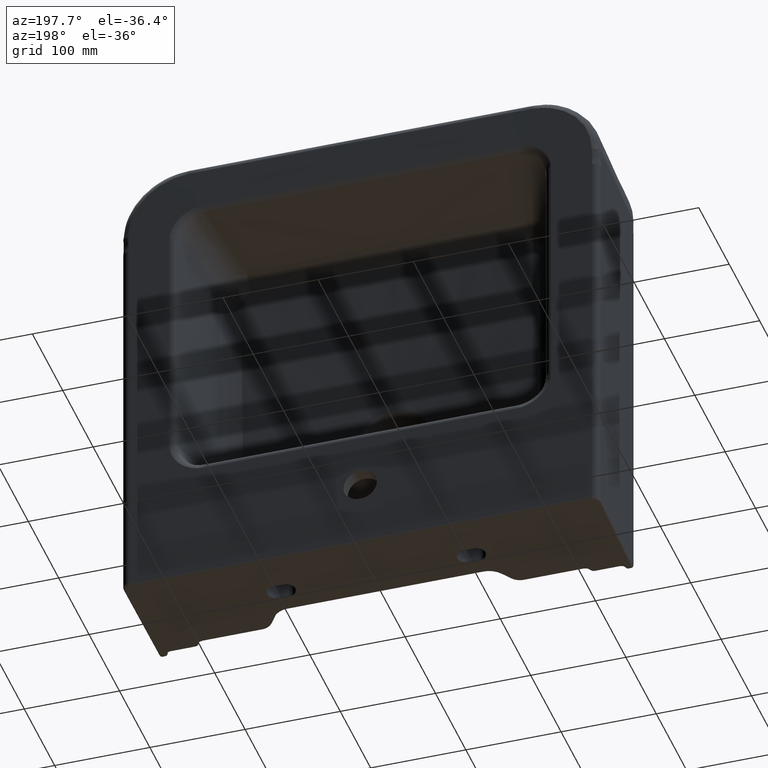
[diagram: clean part render]
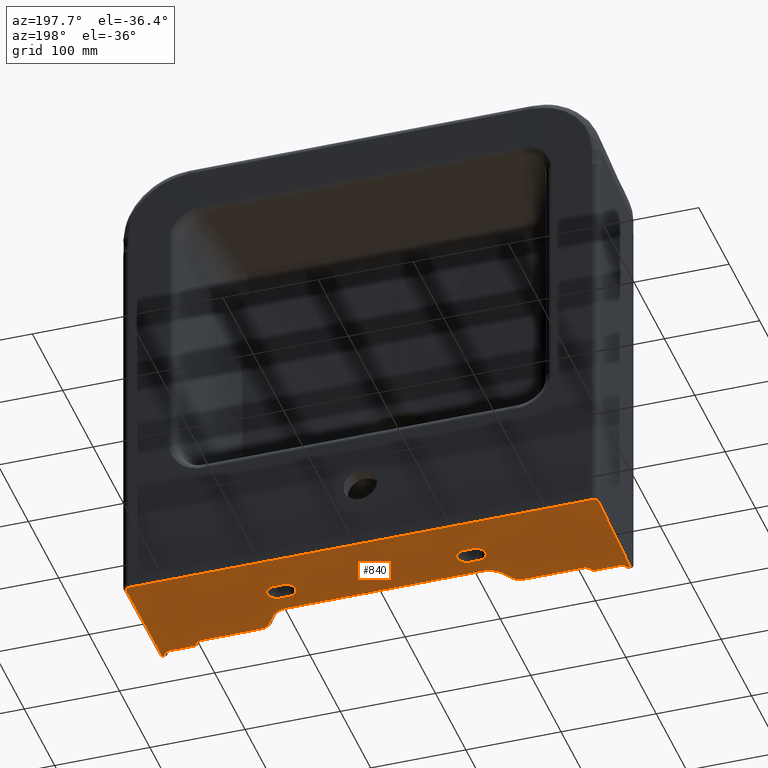
[diagram: same view with one face highlighted and labeled with its STEP entity id]
A machine part, auxiliary view. The second image highlights one B-rep face of the part: STEP entity #840.
In plain terms, the highlighted planar face has unit normal (0, -0.0279, 0.9996).
Its self-contained STEP definition (entity closure, byte-faithful):
#206=FACE_BOUND('',#1433,.T.);
#207=FACE_BOUND('',#1434,.T.);
#208=FACE_BOUND('',#1435,.T.);
#404=PLANE('',#4704);
#448=ELLIPSE('',#4688,4.70183338348822,4.7);
#449=ELLIPSE('',#4689,6.58256673688351,6.58);
#450=ELLIPSE('',#4690,1.88073335339529,1.88);
#451=ELLIPSE('',#4691,7.52293341358115,7.52);
#452=ELLIPSE('',#4692,11.2877804715137,11.28);
#453=ELLIPSE('',#4693,21.6205266363015,21.62);
#454=ELLIPSE('',#4694,21.6205266363016,21.62);
#455=ELLIPSE('',#4695,11.287780471497,11.28);
#456=ELLIPSE('',#4696,7.52293341358115,7.52);
#457=ELLIPSE('',#4697,1.88073335339529,1.88);
#458=ELLIPSE('',#4698,6.58256673688351,6.58);
#459=ELLIPSE('',#4699,4.70183338348822,4.7);
#460=ELLIPSE('',#4700,9.98709640243345,9.98320213903743);
#461=ELLIPSE('',#4701,9.98709640243345,9.98320213903743);
#462=ELLIPSE('',#4702,9.98709640243345,9.98320213903743);
#463=ELLIPSE('',#4703,9.98709640243345,9.98320213903743);
#542=LINE('',#6338,#695);
#543=LINE('',#6343,#696);
#544=LINE('',#6345,#697);
#545=LINE('',#6347,#698);
#546=LINE('',#6351,#699);
#547=LINE('',#6357,#700);
#548=LINE('',#6361,#701);
#549=LINE('',#6365,#702);
#550=LINE('',#6369,#703);
#551=LINE('',#6373,#704);
#552=LINE('',#6379,#705);
#553=LINE('',#6383,#706);
#554=LINE('',#6385,#707);
#555=LINE('',#6387,#708);
#556=LINE('',#6390,#709);
#557=LINE('',#6395,#710);
#558=LINE('',#6398,#711);
#559=LINE('',#6403,#712);
#695=VECTOR('',#5119,1.);
#696=VECTOR('',#5122,1.);
#697=VECTOR('',#5123,1.);
#698=VECTOR('',#5124,1.);
#699=VECTOR('',#5127,1.);
#700=VECTOR('',#5132,1.);
#701=VECTOR('',#5135,1.);
#702=VECTOR('',#5138,1.);
#703=VECTOR('',#5141,1.);
#704=VECTOR('',#5144,1.);
#705=VECTOR('',#5149,1.);
#706=VECTOR('',#5152,1.);
#707=VECTOR('',#5153,1.);
#708=VECTOR('',#5154,1.);
#709=VECTOR('',#5157,1.);
#710=VECTOR('',#5160,1.);
#711=VECTOR('',#5163,1.);
#712=VECTOR('',#5166,1.);
#840=ADVANCED_FACE('',(#206,#207,#208),#404,.F.);
#1433=EDGE_LOOP('',(#1981,#1982,#1983,#1984,#1985,#1986,#1987,#1988,#1989,
#1990,#1991,#1992,#1993,#1994,#1995,#1996,#1997,#1998,#1999,#2000,#2001,
#2002,#2003,#2004,#2005,#2006));
#1434=EDGE_LOOP('',(#2007,#2008,#2009,#2010));
#1435=EDGE_LOOP('',(#2011,#2012,#2013,#2014));
#1981=ORIENTED_EDGE('',*,*,#3771,.T.);
#1982=ORIENTED_EDGE('',*,*,#3772,.T.);
#1983=ORIENTED_EDGE('',*,*,#3773,.T.);
#1984=ORIENTED_EDGE('',*,*,#3774,.T.);
#1985=ORIENTED_EDGE('',*,*,#3775,.T.);
#1986=ORIENTED_EDGE('',*,*,#3776,.T.);
#1987=ORIENTED_EDGE('',*,*,#3777,.T.);
#1988=ORIENTED_EDGE('',*,*,#3778,.T.);
#1989=ORIENTED_EDGE('',*,*,#3779,.T.);
#1990=ORIENTED_EDGE('',*,*,#3780,.T.);
#1991=ORIENTED_EDGE('',*,*,#3781,.T.);
#1992=ORIENTED_EDGE('',*,*,#3782,.T.);
#1993=ORIENTED_EDGE('',*,*,#3783,.T.);
#1994=ORIENTED_EDGE('',*,*,#3784,.T.);
#1995=ORIENTED_EDGE('',*,*,#3785,.T.);
#1996=ORIENTED_EDGE('',*,*,#3786,.T.);
#1997=ORIENTED_EDGE('',*,*,#3787,.T.);
#1998=ORIENTED_EDGE('',*,*,#3788,.T.);
#1999=ORIENTED_EDGE('',*,*,#3789,.T.);
#2000=ORIENTED_EDGE('',*,*,#3790,.T.);
#2001=ORIENTED_EDGE('',*,*,#3791,.T.);
#2002=ORIENTED_EDGE('',*,*,#3792,.T.);
#2003=ORIENTED_EDGE('',*,*,#3793,.T.);
#2004=ORIENTED_EDGE('',*,*,#3794,.T.);
#2005=ORIENTED_EDGE('',*,*,#3795,.T.);
#2006=ORIENTED_EDGE('',*,*,#3796,.T.);
#2007=ORIENTED_EDGE('',*,*,#3797,.T.);
#2008=ORIENTED_EDGE('',*,*,#3798,.T.);
#2009=ORIENTED_EDGE('',*,*,#3799,.T.);
#2010=ORIENTED_EDGE('',*,*,#3800,.T.);
#2011=ORIENTED_EDGE('',*,*,#3801,.F.);
#2012=ORIENTED_EDGE('',*,*,#3802,.F.);
#2013=ORIENTED_EDGE('',*,*,#3803,.F.);
#2014=ORIENTED_EDGE('',*,*,#3804,.F.);
#3365=VERTEX_POINT('',#6339);
#3366=VERTEX_POINT('',#6340);
#3367=VERTEX_POINT('',#6342);
#3368=VERTEX_POINT('',#6344);
#3369=VERTEX_POINT('',#6346);
#3370=VERTEX_POINT('',#6348);
#3371=VERTEX_POINT('',#6350);
#3372=VERTEX_POINT('',#6352);
#3373=VERTEX_POINT('',#6354);
#3374=VERTEX_POINT('',#6356);
#3375=VERTEX_POINT('',#6358);
#3376=VERTEX_POINT('',#6360);
#3377=VERTEX_POINT('',#6362);
#3378=VERTEX_POINT('',#6364);
#3379=VERTEX_POINT('',#6366);
#3380=VERTEX_POINT('',#6368);
#3381=VERTEX_POINT('',#6370);
#3382=VERTEX_POINT('',#6372);
#3383=VERTEX_POINT('',#6374);
#3384=VERTEX_POINT('',#6376);
#3385=VERTEX_POINT('',#6378);
#3386=VERTEX_POINT('',#6380);
#3387=VERTEX_POINT('',#6382);
#3388=VERTEX_POINT('',#6384);
#3389=VERTEX_POINT('',#6386);
#3390=VERTEX_POINT('',#6388);
#3391=VERTEX_POINT('',#6391);
#3392=VERTEX_POINT('',#6392);
#3393=VERTEX_POINT('',#6394);
#3394=VERTEX_POINT('',#6396);
#3395=VERTEX_POINT('',#6399);
#3396=VERTEX_POINT('',#6400);
#3397=VERTEX_POINT('',#6402);
#3398=VERTEX_POINT('',#6404);
#3771=EDGE_CURVE('',#3365,#3366,#542,.T.);
#3772=EDGE_CURVE('',#3366,#3367,#448,.T.);
#3773=EDGE_CURVE('',#3367,#3368,#543,.T.);
#3774=EDGE_CURVE('',#3368,#3369,#544,.T.);
#3775=EDGE_CURVE('',#3369,#3370,#545,.T.);
#3776=EDGE_CURVE('',#3370,#3371,#449,.T.);
#3777=EDGE_CURVE('',#3371,#3372,#546,.T.);
#3778=EDGE_CURVE('',#3372,#3373,#450,.T.);
#3779=EDGE_CURVE('',#3373,#3374,#451,.T.);
#3780=EDGE_CURVE('',#3374,#3375,#547,.T.);
#3781=EDGE_CURVE('',#3375,#3376,#452,.T.);
#3782=EDGE_CURVE('',#3376,#3377,#548,.T.);
#3783=EDGE_CURVE('',#3377,#3378,#453,.T.);
#3784=EDGE_CURVE('',#3378,#3379,#549,.T.);
#3785=EDGE_CURVE('',#3379,#3380,#454,.T.);
#3786=EDGE_CURVE('',#3380,#3381,#550,.T.);
#3787=EDGE_CURVE('',#3381,#3382,#455,.T.);
#3788=EDGE_CURVE('',#3382,#3383,#551,.T.);
#3789=EDGE_CURVE('',#3383,#3384,#456,.T.);
#3790=EDGE_CURVE('',#3384,#3385,#457,.T.);
#3791=EDGE_CURVE('',#3385,#3386,#552,.T.);
#3792=EDGE_CURVE('',#3386,#3387,#458,.T.);
#3793=EDGE_CURVE('',#3387,#3388,#553,.T.);
#3794=EDGE_CURVE('',#3388,#3389,#554,.T.);
#3795=EDGE_CURVE('',#3389,#3390,#555,.T.);
#3796=EDGE_CURVE('',#3390,#3365,#459,.T.);
#3797=EDGE_CURVE('',#3391,#3392,#556,.T.);
#3798=EDGE_CURVE('',#3392,#3393,#460,.T.);
#3799=EDGE_CURVE('',#3393,#3394,#557,.T.);
#3800=EDGE_CURVE('',#3394,#3391,#461,.T.);
#3801=EDGE_CURVE('',#3395,#3396,#558,.T.);
#3802=EDGE_CURVE('',#3397,#3395,#462,.T.);
#3803=EDGE_CURVE('',#3398,#3397,#559,.T.);
#3804=EDGE_CURVE('',#3396,#3398,#463,.T.);
#4688=AXIS2_PLACEMENT_3D('',#6341,#5120,#5121);
#4689=AXIS2_PLACEMENT_3D('',#6349,#5125,#5126);
#4690=AXIS2_PLACEMENT_3D('',#6353,#5128,#5129);
#4691=AXIS2_PLACEMENT_3D('',#6355,#5130,#5131);
#4692=AXIS2_PLACEMENT_3D('',#6359,#5133,#5134);
#4693=AXIS2_PLACEMENT_3D('',#6363,#5136,#5137);
#4694=AXIS2_PLACEMENT_3D('',#6367,#5139,#5140);
#4695=AXIS2_PLACEMENT_3D('',#6371,#5142,#5143);
#4696=AXIS2_PLACEMENT_3D('',#6375,#5145,#5146);
#4697=AXIS2_PLACEMENT_3D('',#6377,#5147,#5148);
#4698=AXIS2_PLACEMENT_3D('',#6381,#5150,#5151);
#4699=AXIS2_PLACEMENT_3D('',#6389,#5155,#5156);
#4700=AXIS2_PLACEMENT_3D('',#6393,#5158,#5159);
#4701=AXIS2_PLACEMENT_3D('',#6397,#5161,#5162);
#4702=AXIS2_PLACEMENT_3D('',#6401,#5164,#5165);
#4703=AXIS2_PLACEMENT_3D('',#6405,#5167,#5168);
#4704=AXIS2_PLACEMENT_3D('',#6406,#5169,#5170);
#5119=DIRECTION('',(1.,3.02396454661982E-011,0.));
#5120=DIRECTION('',(-3.02278541366964E-011,0.999610070511078,0.0279232328507708));
#5121=DIRECTION('',(1.08226315302036E-009,0.0279232328507708,-0.999610070511078));
#5122=DIRECTION('',(-0.0174456029121474,0.0279189833220354,-0.999457943742155));
#5123=DIRECTION('',(-1.,-3.02396472048581E-011,6.22414316770778E-017));
#5124=DIRECTION('',(-0.12866408989347,-0.0276911414563727,0.991301544766641));
#5125=DIRECTION('',(3.02278541366964E-011,-0.999610070511078,-0.0279232328507708));
#5126=DIRECTION('',(1.08226099868272E-009,0.0279232328507708,-0.999610070511078));
#5127=DIRECTION('',(-0.999999675434204,-2.24974149593069E-005,0.000805372803576523));
#5128=DIRECTION('',(-3.02278541366964E-011,0.999610070511078,0.0279232328507708));
#5129=DIRECTION('',(-1.08250482200015E-009,-0.0279232328507708,0.999610070511078));
#5130=DIRECTION('',(3.02278541366964E-011,-0.999610070511078,-0.0279232328507708));
#5131=DIRECTION('',(-1.08250482200015E-009,-0.0279232328507708,0.999610070511078));
#5132=DIRECTION('',(-0.99999967518791,-2.250594933922E-005,0.000805678321642872));
#5133=DIRECTION('',(-3.02278532066103E-011,0.999610070511078,0.0279232328507708));
#5134=DIRECTION('',(0.658598669734765,0.0210120758169547,-0.752200960444388));
#5135=DIRECTION('',(-0.57365443312597,-0.0228718481381884,0.818778034584261));
#5136=DIRECTION('',(3.02278541366964E-011,-0.999610070511078,-0.0279232328507708));
#5137=DIRECTION('',(-4.33074018297495E-009,0.0279232328507708,-0.999610070511078));
#5138=DIRECTION('',(-1.,-3.02101695940575E-011,-1.05519224032368E-012));
#5139=DIRECTION('',(3.02278541366964E-011,-0.999610070511078,-0.0279232328507708));
#5140=DIRECTION('',(-4.33074007318715E-009,0.0279232328507708,-0.999610070511078));
#5141=DIRECTION('',(-0.573654433125857,0.0228718481035235,-0.818778034585309));
#5142=DIRECTION('',(-3.02278532066103E-011,0.999610070511078,0.0279232328507708));
#5143=DIRECTION('',(-0.658598668813244,0.0210120757996752,-0.752200961251721));
#5144=DIRECTION('',(-0.999999675187911,2.25058888599488E-005,-0.000805678321642873));
#5145=DIRECTION('',(3.02278541366964E-011,-0.999610070511078,-0.0279232328507708));
#5146=DIRECTION('',(-1.08171932543037E-009,-0.0279232328507708,0.999610070511078));
#5147=DIRECTION('',(-3.02278541366964E-011,0.999610070511078,0.0279232328507708));
#5148=DIRECTION('',(-1.08171932543037E-009,-0.0279232328507708,0.999610070511078));
#5149=DIRECTION('',(-0.999999675434206,2.24973544800356E-005,-0.000805372803576525));
#5150=DIRECTION('',(3.02278541366964E-011,-0.999610070511078,-0.0279232328507708));
#5151=DIRECTION('',(1.08196311768217E-009,0.0279232328507708,-0.999610070511078));
#5152=DIRECTION('',(-0.128664089893497,0.0276911414485972,-0.991301544766855));
#5153=DIRECTION('',(-1.,-3.02396437275382E-011,-6.22414316734427E-017));
#5154=DIRECTION('',(-0.0174456029121468,-0.0279189833230897,0.999457943742125));
#5155=DIRECTION('',(-3.02278541366964E-011,0.999610070511078,0.0279232328507708));
#5156=DIRECTION('',(1.08196099441015E-009,0.0279232328507708,-0.999610070511078));
#5157=DIRECTION('',(-1.,-3.02396454661982E-011,4.03896783473158E-028));
#5158=DIRECTION('',(3.02278541366964E-011,-0.999610070511078,-0.0279232328507708));
#5159=DIRECTION('',(1.08211207371526E-009,0.0279232328507708,-0.999610070511078));
#5160=DIRECTION('',(1.,3.02396454661982E-011,-4.03896783473158E-028));
#5161=DIRECTION('',(3.02278541366964E-011,-0.999610070511078,-0.0279232328507708));
#5162=DIRECTION('',(1.08211207371526E-009,0.0279232328507708,-0.999610070511078));
#5163=DIRECTION('',(1.,3.02396454661982E-011,-4.03896783473158E-028));
#5164=DIRECTION('',(-3.02278541366964E-011,0.999610070511078,0.0279232328507708));
#5165=DIRECTION('',(1.08211207371526E-009,0.0279232328507708,-0.999610070511078));
#5166=DIRECTION('',(-1.,-3.02396454661982E-011,4.03896783473158E-028));
#5167=DIRECTION('',(-3.02278541366964E-011,0.999610070511078,0.0279232328507708));
#5168=DIRECTION('',(1.08211207371526E-009,0.0279232328507708,-0.999610070511078));
#5169=DIRECTION('',(3.02278541366964E-011,-0.999610070511078,-0.0279232328507708));
#5170=DIRECTION('',(0.,0.0279232328507708,-0.999610070511078));
#6338=CARTESIAN_POINT('',(249.580053475754,191.152523413892,24.8870558230637));
#6339=CARTESIAN_POINT('',(-243.328003265051,191.152523398986,24.8870558230637));
#6340=CARTESIAN_POINT('',(243.32800326488,191.152523413703,24.8870558230637));
#6341=CARTESIAN_POINT('',(243.32800326488,191.283813802095,20.1870558230637));
#6342=CARTESIAN_POINT('',(248.027287432147,191.286105135406,20.1050295146364));
#6343=CARTESIAN_POINT('',(246.077505995661,194.406428100511,-91.5978766600935));
#6344=CARTESIAN_POINT('',(246.078880720121,194.4042280671,-91.519118746759));
#6345=CARTESIAN_POINT('',(243.167525798916,194.404228067012,-91.519118746759));
#6346=CARTESIAN_POINT('',(243.167525798829,194.404228067012,-91.519118746759));
#6347=CARTESIAN_POINT('',(228.065174979305,191.153893546996,24.8380070790821));
#6348=CARTESIAN_POINT('',(243.107970856314,194.39141062635,-91.0602734966022));
#6349=CARTESIAN_POINT('',(236.582704427059,194.415069000172,-91.9072079847655));
#6350=CARTESIAN_POINT('',(236.588003780108,194.231262516033,-85.3272101187432));
#6351=CARTESIAN_POINT('',(249.48900277958,194.231552755256,-85.3376002358487));
#6352=CARTESIAN_POINT('',(209.531349268026,194.230653811052,-85.3054194179709));
#6353=CARTESIAN_POINT('',(209.532863368897,194.178137672727,-83.4254200276789));
#6354=CARTESIAN_POINT('',(207.719456311921,194.191991276591,-83.9213583763758));
#6355=CARTESIAN_POINT('',(200.465828084015,194.247405692047,-85.9051117711636));
#6356=CARTESIAN_POINT('',(200.471886784995,194.037341138798,-78.385114211846));
#6357=CARTESIAN_POINT('',(249.494542233179,194.038444440556,-78.4246107154389));
#6358=CARTESIAN_POINT('',(137.266098449295,194.035918632065,-78.334190661841));
#6359=CARTESIAN_POINT('',(137.267480415885,193.720821628758,-67.0541881142371));
#6360=CARTESIAN_POINT('',(128.02703053176,193.901471195703,-73.5211730652958));
#6361=CARTESIAN_POINT('',(120.563337562797,193.603890557816,-62.8682302708563));
#6362=CARTESIAN_POINT('',(120.572549221055,193.604257830579,-62.8813780877441));
#6363=CARTESIAN_POINT('',(102.863804850173,193.950587275751,-75.27945546989));
#6364=CARTESIAN_POINT('',(102.863804850173,193.346872276129,-53.66735931449));
#6365=CARTESIAN_POINT('',(-102.863804850258,193.346872269914,-53.6673593147071));
#6366=CARTESIAN_POINT('',(-102.863804850343,193.346872269914,-53.6673593147071));
#6367=CARTESIAN_POINT('',(-102.863804850343,193.950587269536,-75.2794554701071));
#6368=CARTESIAN_POINT('',(-120.572549221226,193.604257823294,-62.8813780879986));
#6369=CARTESIAN_POINT('',(-128.086536134707,193.903843701853,-73.6061055225908));
#6370=CARTESIAN_POINT('',(-128.027030531741,193.90147118796,-73.5211730652956));
#6371=CARTESIAN_POINT('',(-137.267480415852,193.720821620456,-67.0541881142369));
#6372=CARTESIAN_POINT('',(-137.266098449263,194.035918623764,-78.3341906618408));
#6373=CARTESIAN_POINT('',(249.665240451732,194.027210387225,-78.0224483688664));
#6374=CARTESIAN_POINT('',(-200.471886785166,194.037341126673,-78.385114211846));
#6375=CARTESIAN_POINT('',(-200.465828084186,194.247405679923,-85.9051117711636));
#6376=CARTESIAN_POINT('',(-207.719456312091,194.191991264028,-83.9213583763758));
#6377=CARTESIAN_POINT('',(-209.532863369067,194.178137660054,-83.4254200276789));
#6378=CARTESIAN_POINT('',(-209.531349268196,194.23065379838,-85.3054194179709));
#6379=CARTESIAN_POINT('',(249.6707801512,194.220322961943,-84.9355903915583));
#6380=CARTESIAN_POINT('',(-236.588003780278,194.231262501725,-85.3272101187433));
#6381=CARTESIAN_POINT('',(-236.58270442723,194.415068985864,-91.9072079847655));
#6382=CARTESIAN_POINT('',(-243.107970856484,194.391410611647,-91.0602734966021));
#6383=CARTESIAN_POINT('',(-219.801854931281,189.375458194493,88.5033385282718));
#6384=CARTESIAN_POINT('',(-243.167525798999,194.404228052305,-91.519118746759));
#6385=CARTESIAN_POINT('',(-246.078880720204,194.404228052217,-91.519118746759));
#6386=CARTESIAN_POINT('',(-246.078880720292,194.404228052217,-91.519118746759));
#6387=CARTESIAN_POINT('',(-248.025912707857,191.288305153816,20.0262716013037));
#6388=CARTESIAN_POINT('',(-248.027287432318,191.286105120405,20.1050295146364));
#6389=CARTESIAN_POINT('',(-243.328003265051,191.283813787379,20.1870558230637));
#6390=CARTESIAN_POINT('',(249.580053475719,192.297250541787,-16.0924672553172));
#6391=CARTESIAN_POINT('',(-94.8404203208548,192.297250531372,-16.0924672553172));
#6392=CARTESIAN_POINT('',(-104.823622459892,192.29725053107,-16.0924672553172));
#6393=CARTESIAN_POINT('',(-104.823622459892,192.576122549418,-26.0756693943547));
#6394=CARTESIAN_POINT('',(-104.823622459892,192.854994567766,-36.0588715333921));
#6395=CARTESIAN_POINT('',(249.580053475702,192.854994578483,-36.0588715333921));
#6396=CARTESIAN_POINT('',(-94.8404203208566,192.854994568068,-36.0588715333921));
#6397=CARTESIAN_POINT('',(-94.8404203208548,192.57612254972,-26.0756693943547));
#6398=CARTESIAN_POINT('',(94.8404203185294,192.297250537108,-16.0924672553172));
#6399=CARTESIAN_POINT('',(94.8404203208548,192.297250537108,-16.0924672553172));
#6400=CARTESIAN_POINT('',(104.823622459892,192.297250537409,-16.0924672553172));
#6401=CARTESIAN_POINT('',(94.8404203208548,192.576122555456,-26.0756693943547));
#6402=CARTESIAN_POINT('',(94.8404203208566,192.854994573804,-36.0588715333921));
#6403=CARTESIAN_POINT('',(104.82362245755,192.854994574106,-36.0588715333921));
#6404=CARTESIAN_POINT('',(104.823622459892,192.854994574106,-36.0588715333921));
#6405=CARTESIAN_POINT('',(104.823622459892,192.576122555758,-26.0756693943547));
#6406=CARTESIAN_POINT('',(249.580053475756,191.075948812108,27.6283123064245));